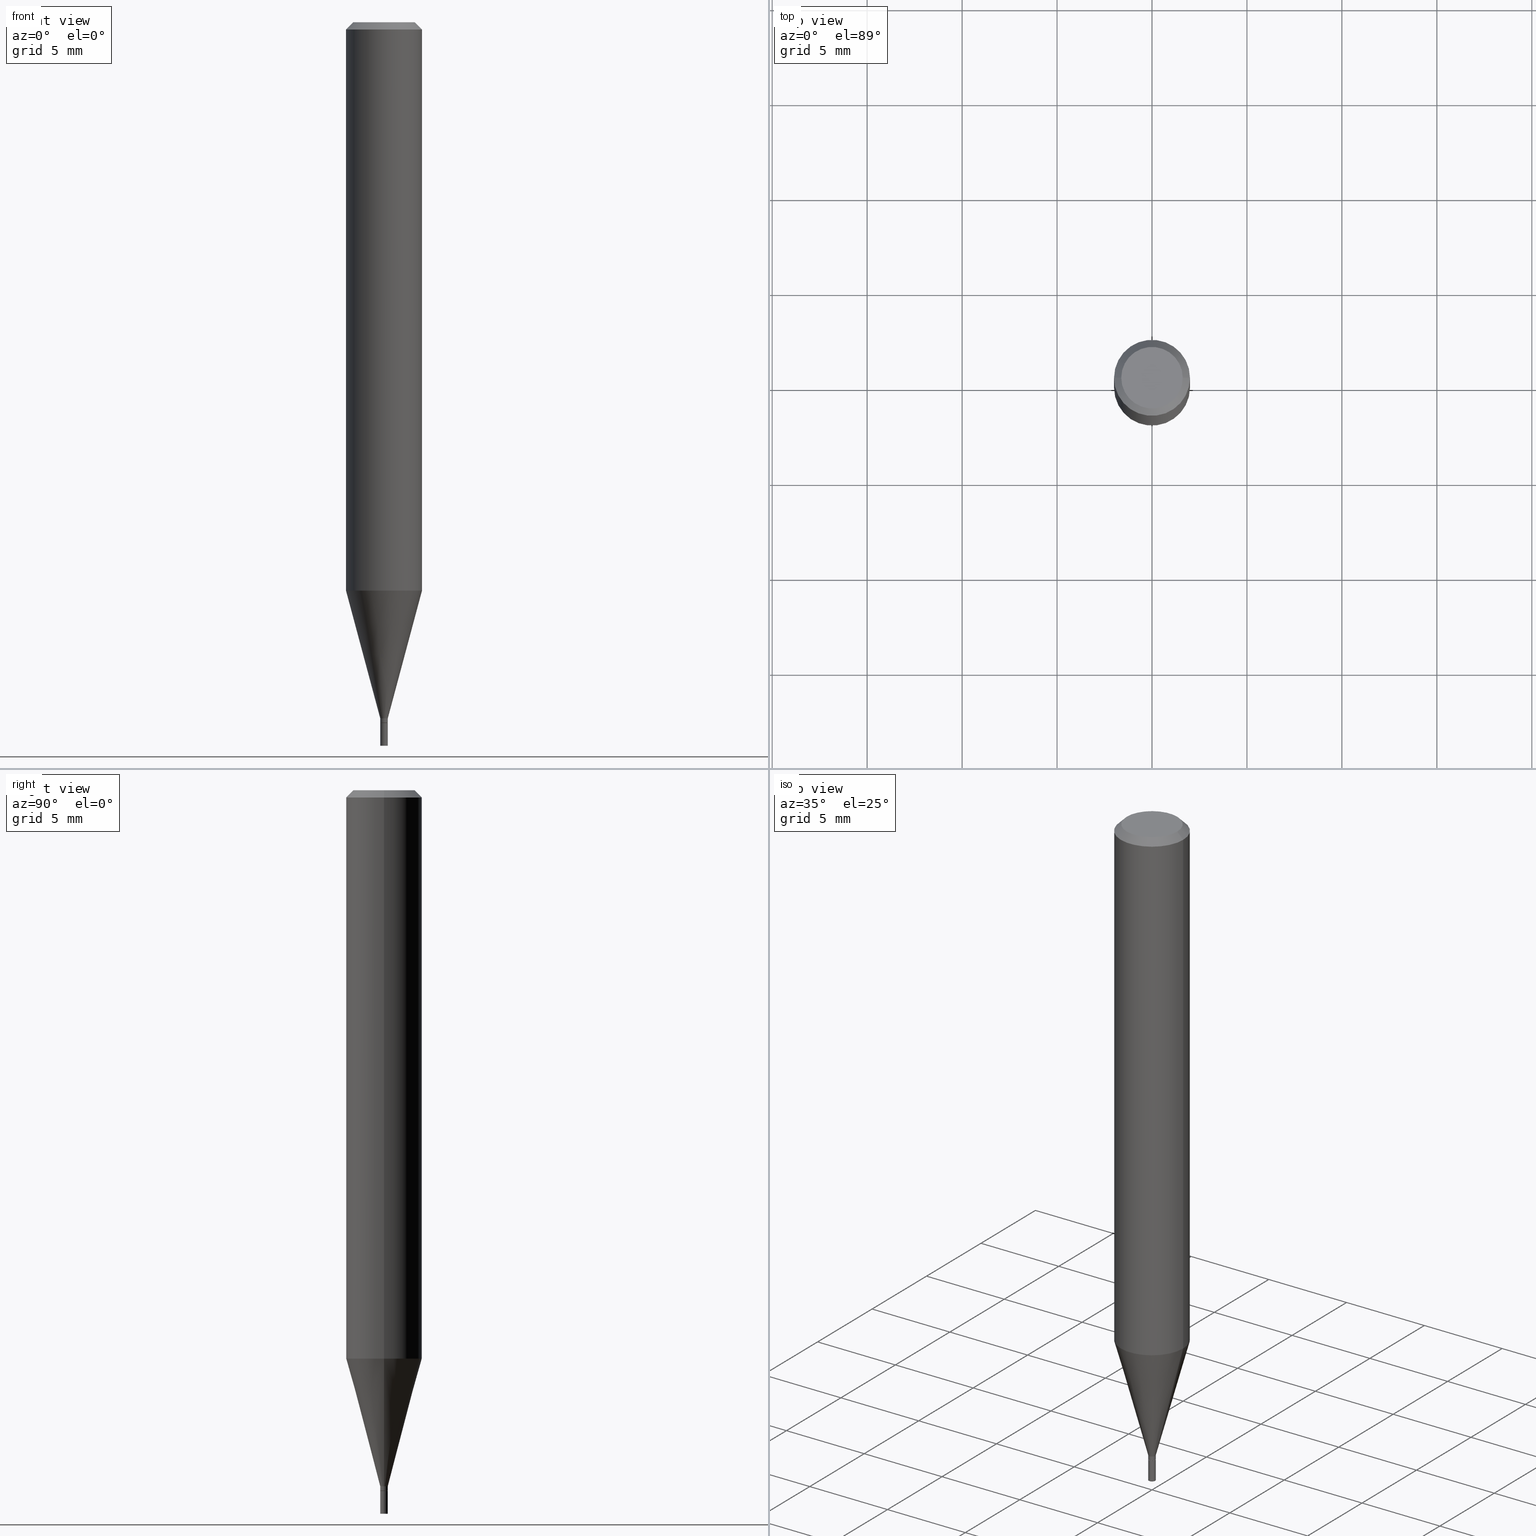
[diagram: canonical four-view strip — front | top / right | iso, engineering-drawing reading convention]
A machine part, canonical four-view strip (front | top / right | iso — engineering-drawing reading convention). The complete STEP part file that produces these views, byte-faithful:
ISO-10303-21;
HEADER;
FILE_DESCRIPTION (( 'STEP AP203' ),
    '1' );
FILE_NAME ('02361.STEP',
    '2024-03-18T20:14:17',
    ( '' ),
    ( '' ),
    'SwSTEP 2.0',
    'SolidWorks 2023',
    '' );
FILE_SCHEMA (( 'CONFIG_CONTROL_DESIGN' ));
ENDSEC;

DATA;
#1 = CONICAL_SURFACE ( 'NONE', #385, 0.007849999999999921277, 0.2617993877991500740 ) ;
#2 = DIRECTION ( 'NONE',  ( 1.000000000000000000, -6.982962677686273021E-15, 0.000000000000000000 ) ) ;
#3 = LINE ( 'NONE', #192, #130 ) ;
#4 =( NAMED_UNIT ( * ) PLANE_ANGLE_UNIT ( ) SI_UNIT ( $, .RADIAN. ) );
#5 = ORIENTED_EDGE ( 'NONE', *, *, #166, .F. ) ;
#6 = EDGE_CURVE ( 'NONE', #464, #218, #291, .T. ) ;
#7 = APPROVAL_DATE_TIME ( #194, #98 ) ;
#8 = ORIENTED_EDGE ( 'NONE', *, *, #207, .T. ) ;
#9 = CARTESIAN_POINT ( 'NONE',  ( 0.007849999999999921277, -5.093023828970496460E-15, -1.443000000000000060 ) ) ;
#10 = APPROVAL_PERSON_ORGANIZATION ( #162, #98, #86 ) ;
#11 = ADVANCED_FACE ( 'NONE', ( #425 ), #459, .T. ) ;
#12 = DIRECTION ( 'NONE',  ( 1.000000000000000000, -6.982962677686266711E-15, 4.876176775795935793E-29 ) ) ;
#13 = CALENDAR_DATE ( 2024, 18, 3 ) ;
#14 = CYLINDRICAL_SURFACE ( 'NONE', #289, 0.007849999999999999339 ) ;
#15 = CARTESIAN_POINT ( 'NONE',  ( 2.881734566564904705E-29, -4.114353222258558176E-15, -1.178397597743367164 ) ) ;
#16 = AXIS2_PLACEMENT_3D ( 'NONE', #261, #373, #157 ) ;
#17 = DIMENSIONAL_EXPONENTS ( 1.000000000000000000, 0.000000000000000000, 0.000000000000000000, 0.000000000000000000, 0.000000000000000000, 0.000000000000000000, 0.000000000000000000 ) ;
#18 = AXIS2_PLACEMENT_3D ( 'NONE', #136, #278, #132 ) ;
#19 = EDGE_CURVE ( 'NONE', #76, #221, #100, .T. ) ;
#20 = CARTESIAN_POINT ( 'NONE',  ( 0.000000000000000000, 0.000000000000000000, 0.000000000000000000 ) ) ;
#21 = CC_DESIGN_PERSON_AND_ORGANIZATION_ASSIGNMENT ( #274, #337, ( #201 ) ) ;
#22 =( GEOMETRIC_REPRESENTATION_CONTEXT ( 3 ) GLOBAL_UNCERTAINTY_ASSIGNED_CONTEXT ( ( #198 ) ) GLOBAL_UNIT_ASSIGNED_CONTEXT ( ( #262, #4, #220 ) ) REPRESENTATION_CONTEXT ( 'NONE', 'WORKASPACE' ) );
#23 = PERSON_AND_ORGANIZATION ( #443, #210 ) ;
#24 = DIRECTION ( 'NONE',  ( -2.445468806185136877E-29, 3.491481338843145188E-15, 1.000000000000000000 ) ) ;
#25 = AXIS2_PLACEMENT_3D ( 'NONE', #329, #465, #149 ) ;
#26 = DIRECTION ( 'NONE',  ( 1.000000000000000000, -6.982962677686265922E-15, 4.876176775795935793E-29 ) ) ;
#27 = CIRCLE ( 'NONE', #318, 0.06375000000000000111 ) ;
#28 = EDGE_CURVE ( 'NONE', #76, #365, #354, .T. ) ;
#29 = APPLICATION_CONTEXT ( 'configuration controlled 3d designs of mechanical parts and assemblies' ) ;
#30 = ORIENTED_EDGE ( 'NONE', *, *, #163, .T. ) ;
#31 = FACE_OUTER_BOUND ( 'NONE', #105, .T. ) ;
#32 = CIRCLE ( 'NONE', #48, 0.07875000000000000056 ) ;
#33 = DIRECTION ( 'NONE',  ( -2.445468806185136597E-29, 3.491481338843145583E-15, 1.000000000000000000 ) ) ;
#34 = ORIENTED_EDGE ( 'NONE', *, *, #437, .F. ) ;
#35 = SHAPE_DEFINITION_REPRESENTATION ( #303, #206 ) ;
#36 = CIRCLE ( 'NONE', #342, 0.007349999999999998895 ) ;
#37 = VERTEX_POINT ( 'NONE', #173 ) ;
#38 = EDGE_CURVE ( 'NONE', #299, #369, #391, .T. ) ;
#39 = DIRECTION ( 'NONE',  ( 1.000000000000000000, -6.982962677686265922E-15, 4.876176775795935793E-29 ) ) ;
#40 = CARTESIAN_POINT ( 'NONE',  ( 0.000000000000000000, 0.000000000000000000, 0.000000000000000000 ) ) ;
#41 = ORIENTED_EDGE ( 'NONE', *, *, #253, .T. ) ;
#42 = ORIENTED_EDGE ( 'NONE', *, *, #153, .F. ) ;
#43 = CARTESIAN_POINT ( 'NONE',  ( 5.481625701987270760E-17, 0.007849999999994927008, -1.452800000000000091 ) ) ;
#44 = AXIS2_PLACEMENT_3D ( 'NONE', #40, #292, #414 ) ;
#45 = DIRECTION ( 'NONE',  ( 1.000000000000000000, -6.982962677686261189E-15, 0.000000000000000000 ) ) ;
#46 = ORIENTED_EDGE ( 'NONE', *, *, #387, .F. ) ;
#47 = EDGE_LOOP ( 'NONE', ( #330, #119, #75, #466 ) ) ;
#48 = AXIS2_PLACEMENT_3D ( 'NONE', #273, #117, #223 ) ;
#49 = ADVANCED_FACE ( 'NONE', ( #133 ), #242, .T. ) ;
#50 = ORIENTED_EDGE ( 'NONE', *, *, #339, .T. ) ;
#51 = DIRECTION ( 'NONE',  ( 1.000000000000000000, -6.982962677686265922E-15, 4.852736867747365646E-29 ) ) ;
#52 = CARTESIAN_POINT ( 'NONE',  ( -0.007849999999999999339, -5.099045443910852809E-15, -1.452800000000000091 ) ) ;
#53 = PERSON_AND_ORGANIZATION_ROLE ( 'creator' ) ;
#54 = FACE_OUTER_BOUND ( 'NONE', #246, .T. ) ;
#55 = DIRECTION ( 'NONE',  ( -2.445468806185136877E-29, 3.491481338843145188E-15, 1.000000000000000000 ) ) ;
#56 = AXIS2_PLACEMENT_3D ( 'NONE', #295, #451, #2 ) ;
#57 = APPROVAL_ROLE ( '' ) ;
#58 = DIRECTION ( 'NONE',  ( -0.7071067811865642261, 7.493145998870414114E-15, 0.7071067811865309194 ) ) ;
#59 = AXIS2_PLACEMENT_3D ( 'NONE', #433, #215, #180 ) ;
#60 = EDGE_CURVE ( 'NONE', #395, #152, #108, .T. ) ;
#61 = AXIS2_PLACEMENT_3D ( 'NONE', #107, #386, #454 ) ;
#62 = DIRECTION ( 'NONE',  ( -2.445468806185136597E-29, 3.491481338843145583E-15, 1.000000000000000000 ) ) ;
#63 = DIRECTION ( 'NONE',  ( -0.2588190451025213501, 5.211531920934551042E-15, 0.9659258262890682012 ) ) ;
#64 = CIRCLE ( 'NONE', #61, 0.07875000000000000056 ) ;
#65 = CONICAL_SURFACE ( 'NONE', #431, 0.07875000000000000056, 0.7853981633974541632 ) ;
#66 = CARTESIAN_POINT ( 'NONE',  ( -0.007849999999999921277, -4.268615392520485900E-15, -1.443000000000000060 ) ) ;
#67 = CARTESIAN_POINT ( 'NONE',  ( 0.000000000000000000, 0.000000000000000000, 0.000000000000000000 ) ) ;
#68 = PRODUCT_DEFINITION_FORMATION_WITH_SPECIFIED_SOURCE ( 'ANY', '', #129, .NOT_KNOWN. ) ;
#69 = CARTESIAN_POINT ( 'NONE',  ( -0.07875000000000000056, 4.975360907851462665E-16, -0.01499999999999999944 ) ) ;
#70 = FACE_OUTER_BOUND ( 'NONE', #441, .T. ) ;
#71 = ADVANCED_FACE ( 'NONE', ( #104 ), #457, .F. ) ;
#72 = ORIENTED_EDGE ( 'NONE', *, *, #177, .T. ) ;
#73 = ORIENTED_EDGE ( 'NONE', *, *, #458, .T. ) ;
#74 = CIRCLE ( 'NONE', #398, 0.06375000000000000111 ) ;
#75 = ORIENTED_EDGE ( 'NONE', *, *, #176, .F. ) ;
#76 = VERTEX_POINT ( 'NONE', #66 ) ;
#77 = LINE ( 'NONE', #269, #313 ) ;
#78 = CARTESIAN_POINT ( 'NONE',  ( 0.007849999999999999339, -5.292038265284556544E-15, -1.500000000000000222 ) ) ;
#79 = EDGE_LOOP ( 'NONE', ( #359, #46, #461, #434 ) ) ;
#80 = APPROVAL_PERSON_ORGANIZATION ( #380, #334, #57 ) ;
#81 = DIRECTION ( 'NONE',  ( 1.000000000000000000, -6.982962677686268288E-15, 0.000000000000000000 ) ) ;
#82 = PERSON_AND_ORGANIZATION_ROLE ( 'design_owner' ) ;
#83 = ORIENTED_EDGE ( 'NONE', *, *, #163, .F. ) ;
#84 = AXIS2_PLACEMENT_3D ( 'NONE', #306, #415, #92 ) ;
#85 = ADVANCED_FACE ( 'NONE', ( #31 ), #326, .T. ) ;
#86 = APPROVAL_ROLE ( '' ) ;
#87 = ORIENTED_EDGE ( 'NONE', *, *, #283, .T. ) ;
#88 = DIRECTION ( 'NONE',  ( -2.445468806185136597E-29, 3.491481338843145583E-15, 1.000000000000000000 ) ) ;
#89 = DIRECTION ( 'NONE',  ( -2.445468806185136877E-29, 3.491481338843145188E-15, 1.000000000000000000 ) ) ;
#90 = PERSON_AND_ORGANIZATION ( #443, #210 ) ;
#91 = ADVANCED_FACE ( 'NONE', ( #435 ), #254, .F. ) ;
#92 = DIRECTION ( 'NONE',  ( 1.000000000000000000, -6.982962677686327453E-15, 0.000000000000000000 ) ) ;
#93 = APPROVAL_STATUS ( 'not_yet_approved' ) ;
#94 = CARTESIAN_POINT ( 'NONE',  ( 3.552777081625766969E-29, -5.072424089071322718E-15, -1.452800000000000091 ) ) ;
#95 = CIRCLE ( 'NONE', #179, 0.007849999999999921277 ) ;
#96 = CALENDAR_DATE ( 2024, 18, 3 ) ;
#97 = LINE ( 'NONE', #347, #113 ) ;
#98 = APPROVAL ( #375, 'UNSPECIFIED' ) ;
#99 = COORDINATED_UNIVERSAL_TIME_OFFSET ( 5, 0, .BEHIND. ) ;
#100 = CIRCLE ( 'NONE', #59, 0.007849999999999921277 ) ;
#101 = DIRECTION ( 'NONE',  ( 1.000000000000000000, -6.982962677686265922E-15, 4.876176775795935793E-29 ) ) ;
#102 = CARTESIAN_POINT ( 'NONE',  ( 3.528811487325152432E-29, -5.038207571950659670E-15, -1.443000000000000060 ) ) ;
#103 = CC_DESIGN_PERSON_AND_ORGANIZATION_ASSIGNMENT ( #338, #53, ( #68 ) ) ;
#104 = FACE_OUTER_BOUND ( 'NONE', #225, .T. ) ;
#105 = EDGE_LOOP ( 'NONE', ( #404, #263, #139, #145 ) ) ;
#106 = CLOSED_SHELL ( 'NONE', ( #249, #265, #11, #91 ) ) ;
#107 = CARTESIAN_POINT ( 'NONE',  ( 2.881734566564904705E-29, -4.114353222258558176E-15, -1.178397597743367164 ) ) ;
#108 = LINE ( 'NONE', #427, #140 ) ;
#109 = DIRECTION ( 'NONE',  ( -2.445468806185136877E-29, 3.491481338843145188E-15, 1.000000000000000000 ) ) ;
#110 = ORIENTED_EDGE ( 'NONE', *, *, #366, .F. ) ;
#111 = DIRECTION ( 'NONE',  ( -1.000000000000000000, 6.982962677686265922E-15, 0.000000000000000000 ) ) ;
#112 = ORIENTED_EDGE ( 'NONE', *, *, #19, .F. ) ;
#113 = VECTOR ( 'NONE', #381, 39.37007874015748143 ) ;
#114 = CARTESIAN_POINT ( 'NONE',  ( -0.007349999999999998895, -5.017549970818845172E-15, -1.452800000000000091 ) ) ;
#115 = CARTESIAN_POINT ( 'NONE',  ( 3.552777081625766969E-29, -5.072424089071322718E-15, -1.452800000000000091 ) ) ;
#116 = ORIENTED_EDGE ( 'NONE', *, *, #300, .T. ) ;
#117 = DIRECTION ( 'NONE',  ( -2.445468806185136597E-29, 3.491481338843145583E-15, 1.000000000000000000 ) ) ;
#118 = AXIS2_PLACEMENT_3D ( 'NONE', #115, #396, #463 ) ;
#119 = ORIENTED_EDGE ( 'NONE', *, *, #28, .T. ) ;
#120 = DIRECTION ( 'NONE',  ( 2.438088387897960049E-29, -3.491481338843145188E-15, -1.000000000000000000 ) ) ;
#121 = ORIENTED_EDGE ( 'NONE', *, *, #315, .T. ) ;
#122 = CIRCLE ( 'NONE', #277, 0.007349999999999998895 ) ;
#123 = DIRECTION ( 'NONE',  ( -2.445468806185136877E-29, 3.491481338843145188E-15, 1.000000000000000000 ) ) ;
#124 = CALENDAR_DATE ( 2024, 18, 3 ) ;
#125 = CARTESIAN_POINT ( 'NONE',  ( -0.007849999999999921277, -5.014900743644734759E-15, -1.452300000000000146 ) ) ;
#126 = CIRCLE ( 'NONE', #16, 0.07875000000000000056 ) ;
#127 = ADVANCED_FACE ( 'NONE', ( #444 ), #258, .T. ) ;
#128 = DIRECTION ( 'NONE',  ( 1.000000000000000000, -6.982962677686261189E-15, 0.000000000000000000 ) ) ;
#129 = PRODUCT ( '02361', '02361', '', ( #309 ) ) ;
#130 = VECTOR ( 'NONE', #123, 39.37007874015748143 ) ;
#131 = DIRECTION ( 'NONE',  ( -2.445468806185136597E-29, 3.491481338843145583E-15, 1.000000000000000000 ) ) ;
#132 = DIRECTION ( 'NONE',  ( 1.000000000000000000, -6.982962677686261189E-15, 0.000000000000000000 ) ) ;
#133 = FACE_OUTER_BOUND ( 'NONE', #409, .T. ) ;
#134 = APPROVAL_DATE_TIME ( #243, #324 ) ;
#135 = VERTEX_POINT ( 'NONE', #401 ) ;
#136 = CARTESIAN_POINT ( 'NONE',  ( 3.552777081625766969E-29, -5.072424089071322718E-15, -1.452800000000000091 ) ) ;
#137 = DIRECTION ( 'NONE',  ( -2.445468806185136597E-29, 3.491481338843145583E-15, 1.000000000000000000 ) ) ;
#138 = CONICAL_SURFACE ( 'NONE', #264, 0.07875000000000000056, 0.7853981633974541632 ) ;
#139 = ORIENTED_EDGE ( 'NONE', *, *, #144, .F. ) ;
#140 = VECTOR ( 'NONE', #250, 39.37007874015748143 ) ;
#141 = PLANE ( 'NONE',  #438 ) ;
#142 = VERTEX_POINT ( 'NONE', #114 ) ;
#143 = ORIENTED_EDGE ( 'NONE', *, *, #232, .T. ) ;
#144 = EDGE_CURVE ( 'NONE', #369, #317, #32, .T. ) ;
#145 = ORIENTED_EDGE ( 'NONE', *, *, #236, .F. ) ;
#146 = LOCAL_TIME ( 16, 14, 17.00000000000000000, #418 ) ;
#147 = CARTESIAN_POINT ( 'NONE',  ( -0.07874999999999997280, -3.554800817847479374E-15, -1.178397597743367164 ) ) ;
#148 = EDGE_LOOP ( 'NONE', ( #182, #227, #143, #150 ) ) ;
#149 = DIRECTION ( 'NONE',  ( 1.000000000000000000, -6.982962677686327453E-15, 0.000000000000000000 ) ) ;
#150 = ORIENTED_EDGE ( 'NONE', *, *, #382, .F. ) ;
#151 = CIRCLE ( 'NONE', #172, 0.007849999999999921277 ) ;
#152 = VERTEX_POINT ( 'NONE', #52 ) ;
#153 = EDGE_CURVE ( 'NONE', #365, #317, #3, .T. ) ;
#154 = DATE_AND_TIME ( #124, #416 ) ;
#155 = ORIENTED_EDGE ( 'NONE', *, *, #60, .T. ) ;
#156 = CIRCLE ( 'NONE', #84, 0.007849999999999999339 ) ;
#157 = DIRECTION ( 'NONE',  ( 1.000000000000000000, -6.982962677686265922E-15, 0.000000000000000000 ) ) ;
#158 = CARTESIAN_POINT ( 'NONE',  ( 0.000000000000000000, 0.000000000000000000, 0.000000000000000000 ) ) ;
#159 = PERSON_AND_ORGANIZATION ( #443, #210 ) ;
#160 = LINE ( 'NONE', #200, #296 ) ;
#161 = DESIGN_CONTEXT ( 'detailed design', #202, 'design' ) ;
#162 = PERSON_AND_ORGANIZATION ( #443, #210 ) ;
#163 = EDGE_CURVE ( 'NONE', #290, #76, #77, .T. ) ;
#164 = CARTESIAN_POINT ( 'NONE',  ( -0.07875000000000000056, -1.523810316759523826E-15, -0.01499999999999999944 ) ) ;
#165 = FACE_OUTER_BOUND ( 'NONE', #47, .T. ) ;
#166 = EDGE_CURVE ( 'NONE', #317, #369, #126, .T. ) ;
#167 = AXIS2_PLACEMENT_3D ( 'NONE', #158, #447, #376 ) ;
#168 = DIRECTION ( 'NONE',  ( 1.000000000000000000, -6.982962677686265922E-15, 4.852736867747365646E-29 ) ) ;
#169 = AXIS2_PLACEMENT_3D ( 'NONE', #20, #131, #284 ) ;
#170 = ORIENTED_EDGE ( 'NONE', *, *, #177, .F. ) ;
#171 = CALENDAR_DATE ( 2024, 18, 3 ) ;
#172 = AXIS2_PLACEMENT_3D ( 'NONE', #102, #33, #271 ) ;
#173 = CARTESIAN_POINT ( 'NONE',  ( 0.07874999999999997280, -4.664261533126351521E-15, -1.178397597743367164 ) ) ;
#174 = EDGE_LOOP ( 'NONE', ( #257, #30, #110, #204 ) ) ;
#175 = ORIENTED_EDGE ( 'NONE', *, *, #458, .F. ) ;
#176 = EDGE_CURVE ( 'NONE', #37, #365, #352, .T. ) ;
#177 = EDGE_CURVE ( 'NONE', #218, #152, #156, .T. ) ;
#178 = CARTESIAN_POINT ( 'NONE',  ( 0.000000000000000000, 0.000000000000000000, 0.000000000000000000 ) ) ;
#179 = AXIS2_PLACEMENT_3D ( 'NONE', #281, #312, #241 ) ;
#180 = DIRECTION ( 'NONE',  ( 1.000000000000000000, -6.982962677686273021E-15, 0.000000000000000000 ) ) ;
#181 = DIRECTION ( 'NONE',  ( -2.445468806185136597E-29, 3.491481338843145583E-15, 1.000000000000000000 ) ) ;
#182 = ORIENTED_EDGE ( 'NONE', *, *, #28, .F. ) ;
#183 = CARTESIAN_POINT ( 'NONE',  ( 0.007849999999999921277, -5.125494605421738004E-15, -1.452300000000000146 ) ) ;
#184 = LOCAL_TIME ( 16, 14, 17.00000000000000000, #99 ) ;
#185 = ORIENTED_EDGE ( 'NONE', *, *, #437, .T. ) ;
#186 = CC_DESIGN_PERSON_AND_ORGANIZATION_ASSIGNMENT ( #23, #266, ( #287 ) ) ;
#187 = DIRECTION ( 'NONE',  ( 2.445468806185136597E-29, -3.491481338843145583E-15, -1.000000000000000000 ) ) ;
#188 = VERTEX_POINT ( 'NONE', #183 ) ;
#189 = CARTESIAN_POINT ( 'NONE',  ( 4.238298707151779182E-45, -6.051167288266434563E-31, -1.733123193570155259E-16 ) ) ;
#190 = EDGE_LOOP ( 'NONE', ( #267, #175 ) ) ;
#191 = CARTESIAN_POINT ( 'NONE',  ( -0.007849999999999999339, -5.099045443910852809E-15, -1.500000000000000222 ) ) ;
#192 = CARTESIAN_POINT ( 'NONE',  ( -0.07875000000000000056, 5.595524044110789003E-16, -3.873661383575737792E-30 ) ) ;
#193 = LOCAL_TIME ( 16, 14, 17.00000000000000000, #270 ) ;
#194 = DATE_AND_TIME ( #195, #280 ) ;
#195 = CALENDAR_DATE ( 2024, 18, 3 ) ;
#196 = DIRECTION ( 'NONE',  ( -2.438088387897960049E-29, 3.491481338843145188E-15, 1.000000000000000000 ) ) ;
#197 = CARTESIAN_POINT ( 'NONE',  ( 3.552777081625766969E-29, -5.072424089071322718E-15, -1.452800000000000091 ) ) ;
#198 = UNCERTAINTY_MEASURE_WITH_UNIT (LENGTH_MEASURE( 1.000000000000000082E-05 ), #262, 'distance_accuracy_value', 'NONE');
#199 = AXIS2_PLACEMENT_3D ( 'NONE', #178, #462, #293 ) ;
#200 = CARTESIAN_POINT ( 'NONE',  ( 0.007849999999999921277, -5.481625701983664187E-17, 3.827798768999771142E-31 ) ) ;
#201 = SECURITY_CLASSIFICATION ( '', '', #446 ) ;
#202 = APPLICATION_CONTEXT ( 'configuration controlled 3d designs of mechanical parts and assemblies' ) ;
#203 = AXIS2_PLACEMENT_3D ( 'NONE', #67, #137, #219 ) ;
#204 = ORIENTED_EDGE ( 'NONE', *, *, #283, .F. ) ;
#205 = CARTESIAN_POINT ( 'NONE',  ( 4.451638707024993845E-16, 0.06375000000000000111, -3.092380950297582687E-16 ) ) ;
#206 = ADVANCED_BREP_SHAPE_REPRESENTATION ( '02361', ( #211, #222, #167 ), #22 ) ;
#207 = EDGE_CURVE ( 'NONE', #464, #395, #340, .T. ) ;
#208 = CARTESIAN_POINT ( 'NONE',  ( 0.07875000000000000056, -5.926364374071552647E-16, -0.01499999999999999944 ) ) ;
#209 = EDGE_CURVE ( 'NONE', #188, #290, #256, .T. ) ;
#210 = ORGANIZATION ( 'UNSPECIFIED', 'UNSPECIFIED', '' ) ;
#211 = MANIFOLD_SOLID_BREP ( 'Body-Move/Copy2[1]', #106 ) ;
#212 = CARTESIAN_POINT ( 'NONE',  ( -0.007849999999999921277, -4.982429967193492427E-15, -1.443000000000000060 ) ) ;
#213 = DIRECTION ( 'NONE',  ( 1.000000000000000000, -6.982962677686327453E-15, 0.000000000000000000 ) ) ;
#214 = CYLINDRICAL_SURFACE ( 'NONE', #44, 0.07875000000000000056 ) ;
#215 = DIRECTION ( 'NONE',  ( -2.445468806185136597E-29, 3.491481338843145583E-15, 1.000000000000000000 ) ) ;
#216 = LINE ( 'NONE', #69, #374 ) ;
#217 = VECTOR ( 'NONE', #320, 39.37007874015748143 ) ;
#218 = VERTEX_POINT ( 'NONE', #304 ) ;
#219 = DIRECTION ( 'NONE',  ( 1.000000000000000000, -6.982962677686265922E-15, 4.876176775795935793E-29 ) ) ;
#220 =( NAMED_UNIT ( * ) SI_UNIT ( $, .STERADIAN. ) SOLID_ANGLE_UNIT ( ) );
#221 = VERTEX_POINT ( 'NONE', #272 ) ;
#222 = MANIFOLD_SOLID_BREP ( 'Body-Move/Copy2[2]', #419 ) ;
#223 = DIRECTION ( 'NONE',  ( 1.000000000000000000, -6.982962677686265922E-15, 0.000000000000000000 ) ) ;
#224 = AXIS2_PLACEMENT_3D ( 'NONE', #403, #181, #213 ) ;
#225 = EDGE_LOOP ( 'NONE', ( #245, #288 ) ) ;
#226 = APPROVAL_STATUS ( 'not_yet_approved' ) ;
#227 = ORIENTED_EDGE ( 'NONE', *, *, #19, .T. ) ;
#228 = VECTOR ( 'NONE', #63, 39.37007874015747433 ) ;
#229 = CARTESIAN_POINT ( 'NONE',  ( 0.000000000000000000, 0.000000000000000000, 0.000000000000000000 ) ) ;
#230 = ORIENTED_EDGE ( 'NONE', *, *, #209, .F. ) ;
#231 = LINE ( 'NONE', #442, #282 ) ;
#232 = EDGE_CURVE ( 'NONE', #221, #37, #370, .T. ) ;
#233 = DIRECTION ( 'NONE',  ( 0.2588190451025213501, 1.565188264969621968E-15, 0.9659258262890682012 ) ) ;
#234 = PERSON_AND_ORGANIZATION ( #443, #210 ) ;
#235 = DIRECTION ( 'NONE',  ( -2.445468806185136597E-29, 3.491481338843145583E-15, 1.000000000000000000 ) ) ;
#236 = EDGE_CURVE ( 'NONE', #37, #369, #231, .T. ) ;
#237 = ADVANCED_FACE ( 'NONE', ( #268 ), #331, .T. ) ;
#238 = COORDINATED_UNIVERSAL_TIME_OFFSET ( 5, 0, .BEHIND. ) ;
#239 = FACE_OUTER_BOUND ( 'NONE', #190, .T. ) ;
#240 = CARTESIAN_POINT ( 'NONE',  ( -0.007349999999999998895, -5.020199197992955584E-15, -1.452800000000000091 ) ) ;
#241 = DIRECTION ( 'NONE',  ( 1.000000000000000000, -6.982962677686273021E-15, 0.000000000000000000 ) ) ;
#242 = CONICAL_SURFACE ( 'NONE', #346, 0.007349999999999998895, 0.7853981633974718157 ) ;
#243 = DATE_AND_TIME ( #171, #184 ) ;
#244 = CARTESIAN_POINT ( 'NONE',  ( 4.238298707151779182E-45, -6.051167288266434563E-31, -1.733123193570155259E-16 ) ) ;
#245 = ORIENTED_EDGE ( 'NONE', *, *, #339, .F. ) ;
#246 = EDGE_LOOP ( 'NONE', ( #8, #155, #170, #407 ) ) ;
#247 = AXIS2_PLACEMENT_3D ( 'NONE', #229, #412, #12 ) ;
#248 = DIRECTION ( 'NONE',  ( 1.000000000000000000, -6.982962677686261189E-15, 0.000000000000000000 ) ) ;
#249 = ADVANCED_FACE ( 'NONE', ( #54 ), #14, .T. ) ;
#250 = DIRECTION ( 'NONE',  ( -2.445468806185136877E-29, 3.491481338843145188E-15, 1.000000000000000000 ) ) ;
#251 = DIRECTION ( 'NONE',  ( -1.000000000000000000, 6.982962677686265922E-15, -4.876176775795935793E-29 ) ) ;
#252 = ORIENTED_EDGE ( 'NONE', *, *, #315, .F. ) ;
#253 = EDGE_CURVE ( 'NONE', #299, #135, #74, .T. ) ;
#254 = PLANE ( 'NONE',  #322 ) ;
#255 = LENGTH_MEASURE_WITH_UNIT ( LENGTH_MEASURE( 0.02539999999999999897 ), #357 );
#256 = CIRCLE ( 'NONE', #56, 0.007849999999999921277 ) ;
#257 = ORIENTED_EDGE ( 'NONE', *, *, #209, .T. ) ;
#258 = CYLINDRICAL_SURFACE ( 'NONE', #247, 0.007849999999999921277 ) ;
#259 = CARTESIAN_POINT ( 'NONE',  ( 3.668203209277705088E-31, -5.237222008264718399E-17, -0.01499999999999999944 ) ) ;
#260 = ORIENTED_EDGE ( 'NONE', *, *, #387, .T. ) ;
#261 = CARTESIAN_POINT ( 'NONE',  ( 3.668203209277705088E-31, -5.237222008264718399E-17, -0.01499999999999999944 ) ) ;
#262 =( CONVERSION_BASED_UNIT ( 'INCH', #255 ) LENGTH_UNIT ( ) NAMED_UNIT ( #17 ) );
#263 = ORIENTED_EDGE ( 'NONE', *, *, #153, .T. ) ;
#264 = AXIS2_PLACEMENT_3D ( 'NONE', #259, #187, #111 ) ;
#265 = ADVANCED_FACE ( 'NONE', ( #239 ), #350, .F. ) ;
#266 = PERSON_AND_ORGANIZATION_ROLE ( 'creator' ) ;
#267 = ORIENTED_EDGE ( 'NONE', *, *, #207, .F. ) ;
#268 = FACE_OUTER_BOUND ( 'NONE', #148, .T. ) ;
#269 = CARTESIAN_POINT ( 'NONE',  ( -0.007849999999999921277, 5.577760475716730523E-17, -3.861364045850062424E-31 ) ) ;
#270 = COORDINATED_UNIVERSAL_TIME_OFFSET ( 5, 0, .BEHIND. ) ;
#271 = DIRECTION ( 'NONE',  ( 1.000000000000000000, -6.982962677686273021E-15, 0.000000000000000000 ) ) ;
#272 = CARTESIAN_POINT ( 'NONE',  ( 0.007849999999999921277, -5.093023828970496460E-15, -1.443000000000000060 ) ) ;
#273 = CARTESIAN_POINT ( 'NONE',  ( 3.668203209277705088E-31, -5.237222008264718399E-17, -0.01499999999999999944 ) ) ;
#274 = PERSON_AND_ORGANIZATION ( #443, #210 ) ;
#275 = CC_DESIGN_PERSON_AND_ORGANIZATION_ASSIGNMENT ( #90, #82, ( #129 ) ) ;
#276 = CARTESIAN_POINT ( 'NONE',  ( 0.000000000000000000, 0.000000000000000000, 0.000000000000000000 ) ) ;
#277 = AXIS2_PLACEMENT_3D ( 'NONE', #197, #452, #128 ) ;
#278 = DIRECTION ( 'NONE',  ( -2.445468806185136597E-29, 3.491481338843145583E-15, 1.000000000000000000 ) ) ;
#279 = ADVANCED_FACE ( 'NONE', ( #316 ), #344, .T. ) ;
#280 = LOCAL_TIME ( 16, 14, 17.00000000000000000, #238 ) ;
#281 = CARTESIAN_POINT ( 'NONE',  ( 3.551554347222674728E-29, -5.070678348401901214E-15, -1.452300000000000146 ) ) ;
#282 = VECTOR ( 'NONE', #55, 39.37007874015748143 ) ;
#283 = EDGE_CURVE ( 'NONE', #188, #221, #160, .T. ) ;
#284 = DIRECTION ( 'NONE',  ( 1.000000000000000000, -6.982962677686266711E-15, 4.876176775795935793E-29 ) ) ;
#285 = CARTESIAN_POINT ( 'NONE',  ( 3.552777081625766969E-29, -5.072424089071322718E-15, -1.452800000000000091 ) ) ;
#286 = ADVANCED_FACE ( 'NONE', ( #165 ), #1, .T. ) ;
#287 = PRODUCT_DEFINITION ( 'UNKNOWN', '', #68, #161 ) ;
#288 = ORIENTED_EDGE ( 'NONE', *, *, #432, .F. ) ;
#289 = AXIS2_PLACEMENT_3D ( 'NONE', #276, #235, #101 ) ;
#290 = VERTEX_POINT ( 'NONE', #125 ) ;
#291 = LINE ( 'NONE', #323, #449 ) ;
#292 = DIRECTION ( 'NONE',  ( -2.445468806185136597E-29, 3.491481338843145583E-15, 1.000000000000000000 ) ) ;
#293 = DIRECTION ( 'NONE',  ( 1.000000000000000000, -6.982962677686265922E-15, 4.876176775795935232E-29 ) ) ;
#294 = ORIENTED_EDGE ( 'NONE', *, *, #432, .T. ) ;
#295 = CARTESIAN_POINT ( 'NONE',  ( 3.551554347222674728E-29, -5.070678348401901214E-15, -1.452300000000000146 ) ) ;
#296 = VECTOR ( 'NONE', #24, 39.37007874015748143 ) ;
#297 = EDGE_LOOP ( 'NONE', ( #260, #41 ) ) ;
#298 = DIRECTION ( 'NONE',  ( -1.000000000000000000, 6.982962677686265922E-15, 0.000000000000000000 ) ) ;
#299 = VERTEX_POINT ( 'NONE', #420 ) ;
#300 = EDGE_CURVE ( 'NONE', #321, #188, #97, .T. ) ;
#301 = APPROVAL_DATE_TIME ( #154, #334 ) ;
#302 = ORIENTED_EDGE ( 'NONE', *, *, #6, .T. ) ;
#303 = PRODUCT_DEFINITION_SHAPE ( 'NONE', 'NONE',  #287 ) ;
#304 = CARTESIAN_POINT ( 'NONE',  ( 0.007849999999999999339, -5.127240346091160296E-15, -1.452800000000000091 ) ) ;
#305 = AXIS2_PLACEMENT_3D ( 'NONE', #410, #88, #371 ) ;
#306 = CARTESIAN_POINT ( 'NONE',  ( 3.552777081625766969E-29, -5.072424089071322718E-15, -1.452800000000000091 ) ) ;
#307 = PERSON_AND_ORGANIZATION_ROLE ( 'design_supplier' ) ;
#308 = CIRCLE ( 'NONE', #118, 0.007849999999999999339 ) ;
#309 = MECHANICAL_CONTEXT ( 'NONE', #29, 'mechanical' ) ;
#310 = CARTESIAN_POINT ( 'NONE',  ( 3.528811487325152432E-29, -5.038207571950659670E-15, -1.443000000000000060 ) ) ;
#311 = DATE_TIME_ROLE ( 'creation_date' ) ;
#312 = DIRECTION ( 'NONE',  ( -2.445468806185136597E-29, 3.491481338843145583E-15, 1.000000000000000000 ) ) ;
#313 = VECTOR ( 'NONE', #89, 39.37007874015748143 ) ;
#314 = CARTESIAN_POINT ( 'NONE',  ( 0.007349999999999998895, -5.123748864752316500E-15, -1.452800000000000091 ) ) ;
#315 = EDGE_CURVE ( 'NONE', #142, #290, #421, .T. ) ;
#316 = FACE_OUTER_BOUND ( 'NONE', #397, .T. ) ;
#317 = VERTEX_POINT ( 'NONE', #164 ) ;
#318 = AXIS2_PLACEMENT_3D ( 'NONE', #189, #394, #51 ) ;
#319 = PRODUCT_RELATED_PRODUCT_CATEGORY ( 'detail', '', ( #129 ) ) ;
#320 = DIRECTION ( 'NONE',  ( 0.7071067811865516806, -7.319954787623270245E-15, -0.7071067811865433539 ) ) ;
#321 = VERTEX_POINT ( 'NONE', #314 ) ;
#322 = AXIS2_PLACEMENT_3D ( 'NONE', #43, #120, #335 ) ;
#323 = CARTESIAN_POINT ( 'NONE',  ( 0.007849999999999999339, -5.481625701983718421E-17, 3.827798768999809240E-31 ) ) ;
#324 = APPROVAL ( #93, 'UNSPECIFIED' ) ;
#325 = DIRECTION ( 'NONE',  ( -0.7071067811865516806, 2.468850131082300448E-15, -0.7071067811865433539 ) ) ;
#326 = CYLINDRICAL_SURFACE ( 'NONE', #199, 0.07875000000000000056 ) ;
#327 = FACE_OUTER_BOUND ( 'NONE', #297, .T. ) ;
#328 = EDGE_LOOP ( 'NONE', ( #72, #185 ) ) ;
#329 = CARTESIAN_POINT ( 'NONE',  ( 3.668203209277704895E-29, -5.237222008264718177E-15, -1.500000000000000222 ) ) ;
#330 = ORIENTED_EDGE ( 'NONE', *, *, #366, .T. ) ;
#331 = CONICAL_SURFACE ( 'NONE', #305, 0.007849999999999921277, 0.2617993877991500740 ) ;
#332 = FACE_OUTER_BOUND ( 'NONE', #336, .T. ) ;
#333 = ORIENTED_EDGE ( 'NONE', *, *, #300, .F. ) ;
#334 = APPROVAL ( #226, 'UNSPECIFIED' ) ;
#335 = DIRECTION ( 'NONE',  ( -1.000000000000000000, 6.982962677686265922E-15, -4.876176775795935793E-29 ) ) ;
#336 = EDGE_LOOP ( 'NONE', ( #50, #121, #230, #333 ) ) ;
#337 = PERSON_AND_ORGANIZATION_ROLE ( 'classification_officer' ) ;
#338 = PERSON_AND_ORGANIZATION ( #443, #210 ) ;
#339 = EDGE_CURVE ( 'NONE', #321, #142, #122, .T. ) ;
#340 = CIRCLE ( 'NONE', #25, 0.007849999999999999339 ) ;
#341 = APPROVAL_ROLE ( '' ) ;
#342 = AXIS2_PLACEMENT_3D ( 'NONE', #94, #364, #45 ) ;
#343 = CC_DESIGN_APPROVAL ( #324, ( #201 ) ) ;
#344 = CYLINDRICAL_SURFACE ( 'NONE', #169, 0.007849999999999921277 ) ;
#345 = CIRCLE ( 'NONE', #224, 0.007849999999999999339 ) ;
#346 = AXIS2_PLACEMENT_3D ( 'NONE', #285, #399, #248 ) ;
#347 = CARTESIAN_POINT ( 'NONE',  ( 0.007349999999999998895, -5.123748864752316500E-15, -1.452800000000000091 ) ) ;
#348 = EDGE_CURVE ( 'NONE', #290, #188, #95, .T. ) ;
#349 = CC_DESIGN_APPROVAL ( #98, ( #287 ) ) ;
#350 = PLANE ( 'NONE',  #429 ) ;
#351 = CARTESIAN_POINT ( 'NONE',  ( 3.668203209277705088E-31, -5.237222008264718399E-17, -0.01499999999999999944 ) ) ;
#352 = CIRCLE ( 'NONE', #460, 0.07875000000000000056 ) ;
#353 = EDGE_LOOP ( 'NONE', ( #356, #456, #455, #436 ) ) ;
#354 = LINE ( 'NONE', #212, #228 ) ;
#355 = DIRECTION ( 'NONE',  ( 2.438088387897960049E-29, -3.491481338843145188E-15, -1.000000000000000000 ) ) ;
#356 = ORIENTED_EDGE ( 'NONE', *, *, #253, .F. ) ;
#357 =( LENGTH_UNIT ( ) NAMED_UNIT ( * ) SI_UNIT ( $, .METRE. ) );
#358 = AXIS2_PLACEMENT_3D ( 'NONE', #392, #389, #39 ) ;
#359 = ORIENTED_EDGE ( 'NONE', *, *, #38, .F. ) ;
#360 = ORIENTED_EDGE ( 'NONE', *, *, #236, .T. ) ;
#361 = ADVANCED_FACE ( 'NONE', ( #327 ), #141, .F. ) ;
#362 = FACE_OUTER_BOUND ( 'NONE', #79, .T. ) ;
#363 = ORIENTED_EDGE ( 'NONE', *, *, #348, .T. ) ;
#364 = DIRECTION ( 'NONE',  ( -2.445468806185136597E-29, 3.491481338843145583E-15, 1.000000000000000000 ) ) ;
#365 = VERTEX_POINT ( 'NONE', #147 ) ;
#366 = EDGE_CURVE ( 'NONE', #221, #76, #151, .T. ) ;
#367 = ADVANCED_FACE ( 'NONE', ( #332 ), #390, .T. ) ;
#368 = COORDINATED_UNIVERSAL_TIME_OFFSET ( 5, 0, .BEHIND. ) ;
#369 = VERTEX_POINT ( 'NONE', #424 ) ;
#370 = LINE ( 'NONE', #9, #377 ) ;
#371 = DIRECTION ( 'NONE',  ( 1.000000000000000000, -6.982962677686273021E-15, 0.000000000000000000 ) ) ;
#372 = CC_DESIGN_PERSON_AND_ORGANIZATION_ASSIGNMENT ( #234, #307, ( #68 ) ) ;
#373 = DIRECTION ( 'NONE',  ( -2.445468806185136597E-29, 3.491481338843145583E-15, 1.000000000000000000 ) ) ;
#374 = VECTOR ( 'NONE', #325, 39.37007874015748143 ) ;
#375 = APPROVAL_STATUS ( 'not_yet_approved' ) ;
#376 = DIRECTION ( 'NONE',  ( 1.000000000000000000, 0.000000000000000000, 0.000000000000000000 ) ) ;
#377 = VECTOR ( 'NONE', #233, 39.37007874015747433 ) ;
#378 = VECTOR ( 'NONE', #58, 39.37007874015748143 ) ;
#379 = CARTESIAN_POINT ( 'NONE',  ( 3.576687321579069994E-29, -5.368277968210015545E-15, -1.500000000000000222 ) ) ;
#380 = PERSON_AND_ORGANIZATION ( #443, #210 ) ;
#381 = DIRECTION ( 'NONE',  ( 0.7071067811865642261, -2.468850131082431399E-15, 0.7071067811865309194 ) ) ;
#382 = EDGE_CURVE ( 'NONE', #365, #37, #64, .T. ) ;
#383 = CC_DESIGN_SECURITY_CLASSIFICATION ( #201, ( #68 ) ) ;
#384 = ADVANCED_FACE ( 'NONE', ( #423 ), #65, .T. ) ;
#385 = AXIS2_PLACEMENT_3D ( 'NONE', #310, #422, #448 ) ;
#386 = DIRECTION ( 'NONE',  ( -2.445468806185136597E-29, 3.491481338843145583E-15, 1.000000000000000000 ) ) ;
#387 = EDGE_CURVE ( 'NONE', #135, #299, #27, .T. ) ;
#388 = APPROVAL_PERSON_ORGANIZATION ( #159, #324, #341 ) ;
#389 = DIRECTION ( 'NONE',  ( -2.438088387897960049E-29, 3.491481338843145188E-15, 1.000000000000000000 ) ) ;
#390 = CONICAL_SURFACE ( 'NONE', #18, 0.007349999999999998895, 0.7853981633974718157 ) ;
#391 = LINE ( 'NONE', #208, #217 ) ;
#392 = CARTESIAN_POINT ( 'NONE',  ( 3.552777081625766969E-29, -5.072424089071322718E-15, -1.452800000000000091 ) ) ;
#393 = CC_DESIGN_APPROVAL ( #334, ( #68 ) ) ;
#394 = DIRECTION ( 'NONE',  ( -2.445468806185136597E-29, 3.491481338843145583E-15, 1.000000000000000000 ) ) ;
#395 = VERTEX_POINT ( 'NONE', #191 ) ;
#396 = DIRECTION ( 'NONE',  ( -2.445468806185136597E-29, 3.491481338843145583E-15, 1.000000000000000000 ) ) ;
#397 = EDGE_LOOP ( 'NONE', ( #83, #363, #87, #112 ) ) ;
#398 = AXIS2_PLACEMENT_3D ( 'NONE', #244, #62, #168 ) ;
#399 = DIRECTION ( 'NONE',  ( -2.445468806185136597E-29, 3.491481338843145583E-15, 1.000000000000000000 ) ) ;
#400 = ORIENTED_EDGE ( 'NONE', *, *, #60, .F. ) ;
#401 = CARTESIAN_POINT ( 'NONE',  ( -0.06375000000000000111, 4.713499807438226283E-16, -1.733123193570187553E-16 ) ) ;
#402 = CC_DESIGN_DATE_AND_TIME_ASSIGNMENT ( #445, #417, ( #201 ) ) ;
#403 = CARTESIAN_POINT ( 'NONE',  ( 3.668203209277704895E-29, -5.237222008264718177E-15, -1.500000000000000222 ) ) ;
#404 = ORIENTED_EDGE ( 'NONE', *, *, #176, .T. ) ;
#405 = DIRECTION ( 'NONE',  ( -2.445468806185136597E-29, 3.491481338843145583E-15, 1.000000000000000000 ) ) ;
#406 = APPLICATION_PROTOCOL_DEFINITION ( 'international standard', 'config_control_design', 1994, #29 ) ;
#407 = ORIENTED_EDGE ( 'NONE', *, *, #6, .F. ) ;
#408 = DATE_AND_TIME ( #96, #146 ) ;
#409 = EDGE_LOOP ( 'NONE', ( #252, #294, #116, #439 ) ) ;
#410 = CARTESIAN_POINT ( 'NONE',  ( 3.528811487325152432E-29, -5.038207571950659670E-15, -1.443000000000000060 ) ) ;
#411 = CC_DESIGN_DATE_AND_TIME_ASSIGNMENT ( #408, #311, ( #287 ) ) ;
#412 = DIRECTION ( 'NONE',  ( -2.445468806185136597E-29, 3.491481338843145583E-15, 1.000000000000000000 ) ) ;
#413 = APPLICATION_PROTOCOL_DEFINITION ( 'international standard', 'config_control_design', 1994, #202 ) ;
#414 = DIRECTION ( 'NONE',  ( 1.000000000000000000, -6.982962677686265922E-15, 4.876176775795935232E-29 ) ) ;
#415 = DIRECTION ( 'NONE',  ( -2.445468806185136597E-29, 3.491481338843145583E-15, 1.000000000000000000 ) ) ;
#416 = LOCAL_TIME ( 16, 14, 17.00000000000000000, #368 ) ;
#417 = DATE_TIME_ROLE ( 'classification_date' ) ;
#418 = COORDINATED_UNIVERSAL_TIME_OFFSET ( 5, 0, .BEHIND. ) ;
#419 = CLOSED_SHELL ( 'NONE', ( #127, #367, #384, #85, #286, #237, #428, #453, #361, #71, #49, #279 ) ) ;
#420 = CARTESIAN_POINT ( 'NONE',  ( 0.06375000000000000111, -5.149965923825455224E-16, -1.733123193570121732E-16 ) ) ;
#421 = LINE ( 'NONE', #240, #378 ) ;
#422 = DIRECTION ( 'NONE',  ( -2.445468806185136597E-29, 3.491481338843145583E-15, 1.000000000000000000 ) ) ;
#423 = FACE_OUTER_BOUND ( 'NONE', #353, .T. ) ;
#424 = CARTESIAN_POINT ( 'NONE',  ( 0.07875000000000000056, -6.022805309504406221E-16, -0.01499999999999999944 ) ) ;
#425 = FACE_OUTER_BOUND ( 'NONE', #440, .T. ) ;
#426 = DIRECTION ( 'NONE',  ( 2.445468806185136597E-29, -3.491481338843145583E-15, -1.000000000000000000 ) ) ;
#427 = CARTESIAN_POINT ( 'NONE',  ( -0.007849999999999999339, 5.577760475716785990E-17, -3.861364045850100522E-31 ) ) ;
#428 = ADVANCED_FACE ( 'NONE', ( #70 ), #214, .T. ) ;
#429 = AXIS2_PLACEMENT_3D ( 'NONE', #379, #196, #26 ) ;
#430 = ORIENTED_EDGE ( 'NONE', *, *, #382, .T. ) ;
#431 = AXIS2_PLACEMENT_3D ( 'NONE', #351, #426, #298 ) ;
#432 = EDGE_CURVE ( 'NONE', #142, #321, #36, .T. ) ;
#433 = CARTESIAN_POINT ( 'NONE',  ( 3.528811487325152432E-29, -5.038207571950659670E-15, -1.443000000000000060 ) ) ;
#434 = ORIENTED_EDGE ( 'NONE', *, *, #166, .T. ) ;
#435 = FACE_OUTER_BOUND ( 'NONE', #328, .T. ) ;
#436 = ORIENTED_EDGE ( 'NONE', *, *, #450, .F. ) ;
#437 = EDGE_CURVE ( 'NONE', #152, #218, #308, .T. ) ;
#438 = AXIS2_PLACEMENT_3D ( 'NONE', #205, #355, #251 ) ;
#439 = ORIENTED_EDGE ( 'NONE', *, *, #348, .F. ) ;
#440 = EDGE_LOOP ( 'NONE', ( #400, #73, #302, #34 ) ) ;
#441 = EDGE_LOOP ( 'NONE', ( #42, #430, #360, #5 ) ) ;
#442 = CARTESIAN_POINT ( 'NONE',  ( 0.07875000000000000056, -5.499083108677934443E-16, 3.839989210939299016E-30 ) ) ;
#443 = PERSON ( 'UNSPECIFIED', 'UNSPECIFIED', 'UNSPECIFIED', ('UNSPECIFIED'), ('UNSPECIFIED'), ('UNSPECIFIED') ) ;
#444 = FACE_OUTER_BOUND ( 'NONE', #174, .T. ) ;
#445 = DATE_AND_TIME ( #13, #193 ) ;
#446 = SECURITY_CLASSIFICATION_LEVEL ( 'unclassified' ) ;
#447 = DIRECTION ( 'NONE',  ( 0.000000000000000000, 0.000000000000000000, 1.000000000000000000 ) ) ;
#448 = DIRECTION ( 'NONE',  ( 1.000000000000000000, -6.982962677686273021E-15, 0.000000000000000000 ) ) ;
#449 = VECTOR ( 'NONE', #109, 39.37007874015748143 ) ;
#450 = EDGE_CURVE ( 'NONE', #135, #317, #216, .T. ) ;
#451 = DIRECTION ( 'NONE',  ( -2.445468806185136597E-29, 3.491481338843145583E-15, 1.000000000000000000 ) ) ;
#452 = DIRECTION ( 'NONE',  ( -2.445468806185136597E-29, 3.491481338843145583E-15, 1.000000000000000000 ) ) ;
#453 = ADVANCED_FACE ( 'NONE', ( #362 ), #138, .T. ) ;
#454 = DIRECTION ( 'NONE',  ( 1.000000000000000000, -6.982962677686268288E-15, 0.000000000000000000 ) ) ;
#455 = ORIENTED_EDGE ( 'NONE', *, *, #144, .T. ) ;
#456 = ORIENTED_EDGE ( 'NONE', *, *, #38, .T. ) ;
#457 = PLANE ( 'NONE',  #358 ) ;
#458 = EDGE_CURVE ( 'NONE', #395, #464, #345, .T. ) ;
#459 = CYLINDRICAL_SURFACE ( 'NONE', #203, 0.007849999999999999339 ) ;
#460 = AXIS2_PLACEMENT_3D ( 'NONE', #15, #405, #81 ) ;
#461 = ORIENTED_EDGE ( 'NONE', *, *, #450, .T. ) ;
#462 = DIRECTION ( 'NONE',  ( -2.445468806185136597E-29, 3.491481338843145583E-15, 1.000000000000000000 ) ) ;
#463 = DIRECTION ( 'NONE',  ( 1.000000000000000000, -6.982962677686327453E-15, 0.000000000000000000 ) ) ;
#464 = VERTEX_POINT ( 'NONE', #78 ) ;
#465 = DIRECTION ( 'NONE',  ( -2.445468806185136597E-29, 3.491481338843145583E-15, 1.000000000000000000 ) ) ;
#466 = ORIENTED_EDGE ( 'NONE', *, *, #232, .F. ) ;
ENDSEC;
END-ISO-10303-21;
